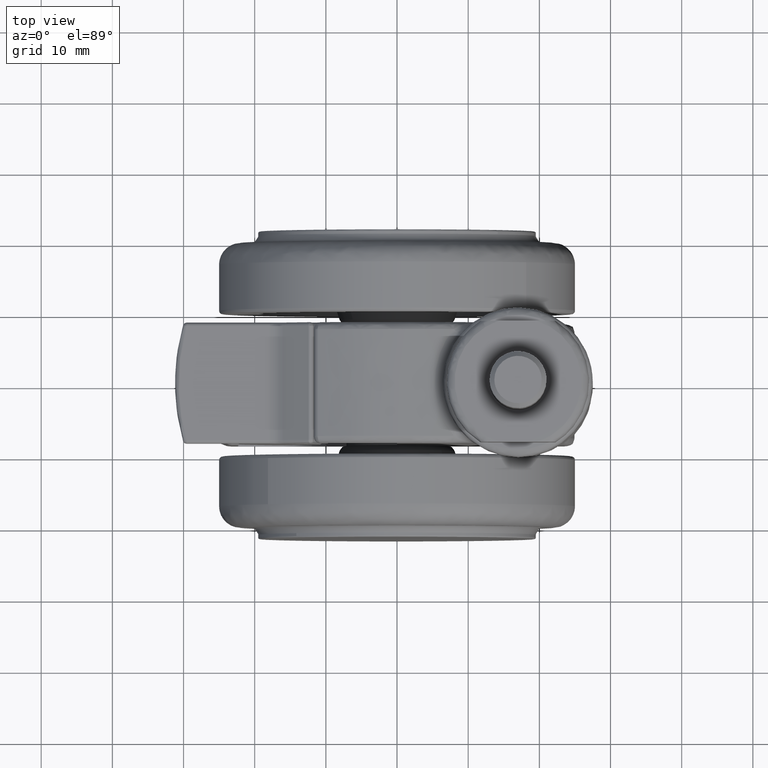
[diagram: clean part render]
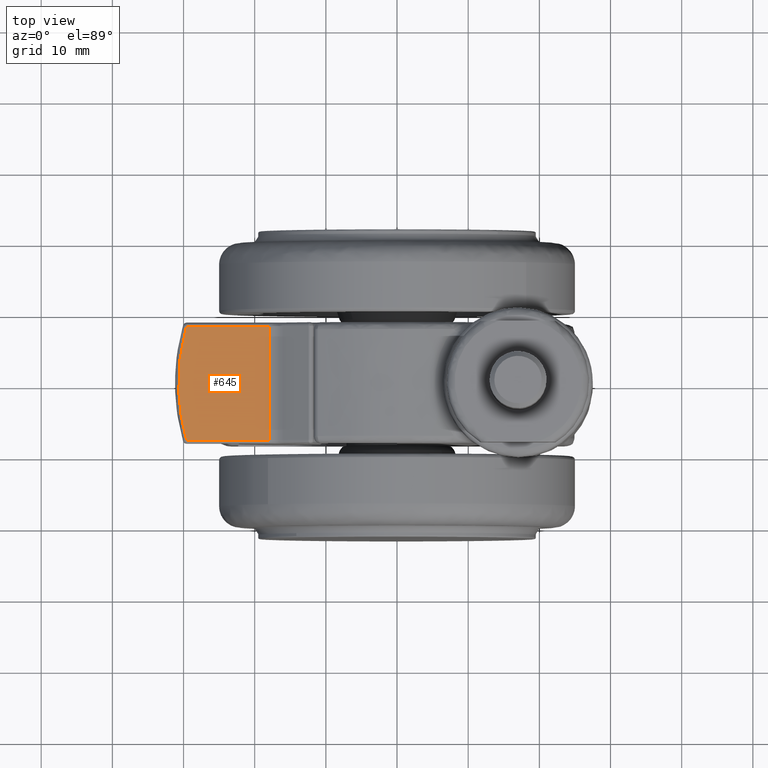
[diagram: same view with one face highlighted and labeled with its STEP entity id]
A machine part, top view. The second image highlights one B-rep face of the part: STEP entity #645.
In plain terms, the highlighted face is a freeform B-spline surface patch.
Its self-contained STEP definition (entity closure, byte-faithful):
#483=CARTESIAN_POINT('',(-17.941154137252799,7.999999999999900,18.500000000000000));
#484=VERTEX_POINT('',#483);
#498=CARTESIAN_POINT('',(-17.941154137252799,-7.999999999999900,18.500000000000000));
#499=VERTEX_POINT('',#498);
#500=CARTESIAN_POINT('',(-17.941154137252799,7.999999999999900,18.500000000000000));
#501=CARTESIAN_POINT('',(-17.941154137252799,-7.999999999999900,18.500000000000000));
#502=QUASI_UNIFORM_CURVE('',1,(#500,#501),.UNSPECIFIED.,.F.,.U.);
#503=EDGE_CURVE('',#484,#499,#502,.T.);
#610=CARTESIAN_POINT('',(-31.323164649491140,-8.799199968988786,18.500000000000000));
#611=CARTESIAN_POINT('',(-17.304522145903899,-8.799199968988786,18.500000000000000));
#612=CARTESIAN_POINT('',(-31.323164649491140,8.799200398142229,18.500000000000000));
#613=CARTESIAN_POINT('',(-17.304522145903899,8.799200398142229,18.500000000000000));
#614=B_SPLINE_SURFACE_WITH_KNOTS('',1,1,((#610,#612),(#611,#613)),.UNSPECIFIED.,.F.,.F.,.U.,(2,2),(2,2),(0.0,14.018642503587239),(0.0,17.598400367131010),.UNSPECIFIED.);
#615=ORIENTED_EDGE('',*,*,#503,.F.);
#616=CARTESIAN_POINT('',(-29.581074729001351,7.999999999999900,18.500000000000000));
#617=VERTEX_POINT('',#616);
#618=CARTESIAN_POINT('',(-17.941154137252799,7.999999999999900,18.500000000000000));
#619=CARTESIAN_POINT('',(-29.581074729001351,7.999999999999900,18.500000000000000));
#620=QUASI_UNIFORM_CURVE('',1,(#618,#619),.UNSPECIFIED.,.F.,.U.);
#621=EDGE_CURVE('',#484,#617,#620,.T.);
#622=ORIENTED_EDGE('',*,*,#621,.T.);
#623=CARTESIAN_POINT('',(-29.581074729001351,-7.999999999999889,18.500000000000000));
#624=VERTEX_POINT('',#623);
#625=CARTESIAN_POINT('',(-29.581074729001340,7.999999999999896,18.500000000000000));
#626=CARTESIAN_POINT('',(-31.835029049194862,1.454392E-014,18.499999999999996));
#627=CARTESIAN_POINT('',(-29.581074729001330,-7.999999999999872,18.500000000000000));
#635=(BOUNDED_CURVE()B_SPLINE_CURVE(2,(#625,#626,#627),.UNSPECIFIED.,.F.,.U.)CURVE()GEOMETRIC_REPRESENTATION_ITEM()QUASI_UNIFORM_CURVE()RATIONAL_B_SPLINE_CURVE((1.0,0.962526838271234,1.0))REPRESENTATION_ITEM(''));
#636=EDGE_CURVE('',#617,#624,#635,.T.);
#637=ORIENTED_EDGE('',*,*,#636,.T.);
#638=CARTESIAN_POINT('',(-29.581074729001351,-7.999999999999889,18.500000000000000));
#639=CARTESIAN_POINT('',(-17.941154137252799,-7.999999999999900,18.500000000000000));
#640=QUASI_UNIFORM_CURVE('',1,(#638,#639),.UNSPECIFIED.,.F.,.U.);
#641=EDGE_CURVE('',#624,#499,#640,.T.);
#642=ORIENTED_EDGE('',*,*,#641,.T.);
#643=EDGE_LOOP('',(#615,#622,#637,#642));
#644=FACE_OUTER_BOUND('',#643,.T.);
#645=ADVANCED_FACE('',(#644),#614,.T.);